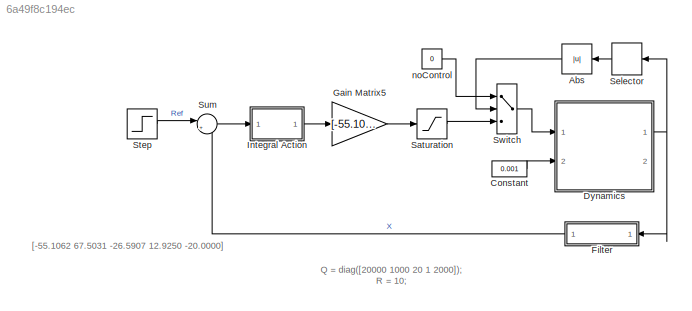
MODEL slx_6a49f8c194ec
KIND model
CONFIG AbsTol = auto
CONFIG FixedStep = 0.01
CONFIG MaxStep = auto
CONFIG MinStep = auto
CONFIG RelTol = 1e-3
CONFIG SampleTimeConstraint = Unconstrained
CONFIG Solver = ode5
CONFIG SolverMode = Auto
CONFIG SolverName = ode5
CONFIG StartTime = 0.0
CONFIG StopTime = 20
BLOCK [Abs] Abs
  SaturateOnIntegerOverflow = off
BLOCK [Constant] Constant
  Value = 0.001
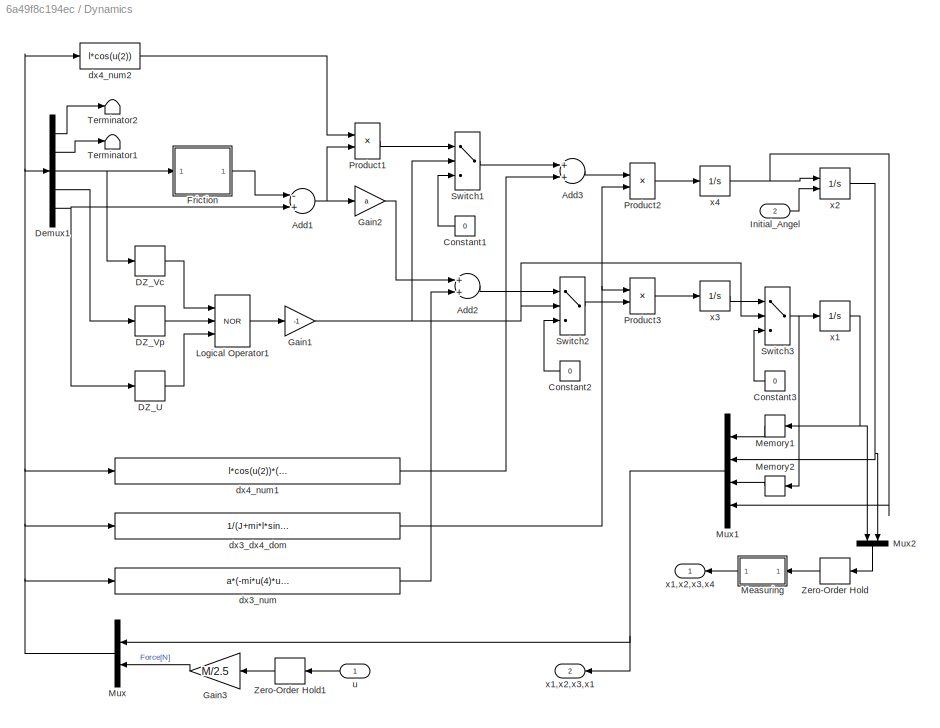
BLOCK [SubSystem] Dynamics
  Ports = [2, 2]
  RequestExecContextInheritance = off
BLOCK [DeadZone] Dynamics/ DZ_Vp
  LowerValue = -3.37476
  UpperValue = 3.37476
BLOCK [Sum] Dynamics/Add1
  InputSameDT = off
  Inputs = -+
  OutDataTypeStr = Inherit: Inherit via internal rule
  Ports = [2, 1]
  SaturateOnIntegerOverflow = off
BLOCK [Sum] Dynamics/Add2
  InputSameDT = off
  OutDataTypeStr = Inherit: Inherit via internal rule
  Ports = [2, 1]
  SaturateOnIntegerOverflow = off
BLOCK [Sum] Dynamics/Add3
  InputSameDT = off
  OutDataTypeStr = Inherit: Inherit via internal rule
  Ports = [2, 1]
  SaturateOnIntegerOverflow = off
BLOCK [Constant] Dynamics/Constant1
  Value = 0
BLOCK [Constant] Dynamics/Constant2
  Value = 0
BLOCK [Constant] Dynamics/Constant3
  Value = 0
BLOCK [DeadZone] Dynamics/DZ_U
  LowerValue = -1.37918
  UpperValue = 1.37918
BLOCK [DeadZone] Dynamics/DZ_Vc
  LowerValue = -0.00793711
  UpperValue = 0.00793711
BLOCK [Demux] Dynamics/Demux1
  DisplayOption = bar
  Outputs = 5
  Ports = [1, 5]
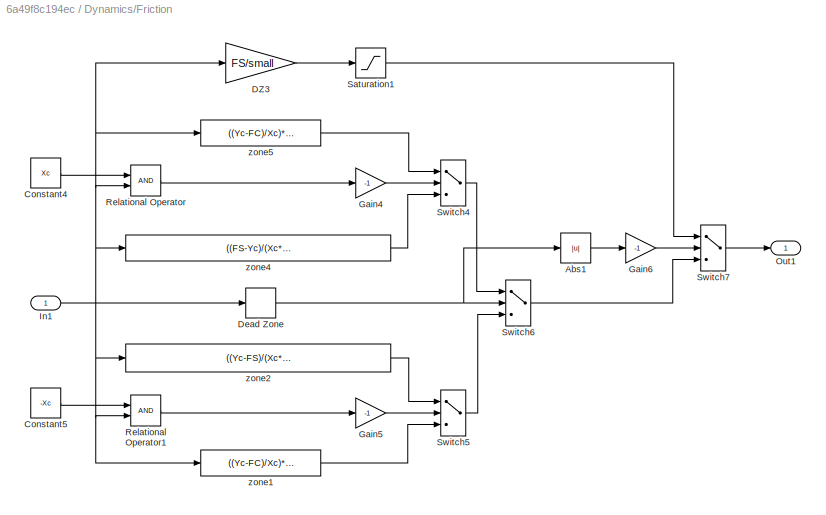
BLOCK [SubSystem] Dynamics/Friction
  Ports = [1, 1]
  RequestExecContextInheritance = off
BLOCK [Abs] Dynamics/Friction/Abs1
  SaturateOnIntegerOverflow = off
BLOCK [Constant] Dynamics/Friction/Constant4
  Value = Xc
BLOCK [Constant] Dynamics/Friction/Constant5
  Value = -Xc
BLOCK [Gain] Dynamics/Friction/DZ3
  Gain = FS/small
  OutDataTypeStr = Inherit: Inherit via internal rule
  ParamDataTypeStr = Inherit: Inherit via internal rule
  SaturateOnIntegerOverflow = off
BLOCK [DeadZone] Dynamics/Friction/Dead Zone
  LowerValue = -DZcv
  UpperValue = DZcv
BLOCK [Gain] Dynamics/Friction/Gain4
  Gain = -1
  OutDataTypeStr = Inherit: Inherit via internal rule
  ParamDataTypeStr = Inherit: Inherit via internal rule
  SaturateOnIntegerOverflow = off
BLOCK [Gain] Dynamics/Friction/Gain5
  Gain = -1
  OutDataTypeStr = Inherit: Inherit via internal rule
  ParamDataTypeStr = Inherit: Inherit via internal rule
  SaturateOnIntegerOverflow = off
BLOCK [Gain] Dynamics/Friction/Gain6
  Gain = -1
  OutDataTypeStr = Inherit: Inherit via internal rule
  ParamDataTypeStr = Inherit: Inherit via internal rule
  SaturateOnIntegerOverflow = off
BLOCK [Inport] Dynamics/Friction/In1
  IconDisplay = Port number
BLOCK [Outport] Dynamics/Friction/Out1
  IconDisplay = Port number
BLOCK [RelationalOperator] Dynamics/Friction/Relational Operator
  InputSameDT = off
  OutDataTypeStr = boolean
  Ports = [2, 1]
BLOCK [RelationalOperator] Dynamics/Friction/Relational Operator1
  InputSameDT = off
  OutDataTypeStr = boolean
  Ports = [2, 1]
BLOCK [Saturate] Dynamics/Friction/Saturation1
  InputPortMap = u0
  LowerLimit = -FS
  Ports = [1, 1]
  UpperLimit = FS
BLOCK [Switch] Dynamics/Friction/Switch4
  InputSameDT = off
  SaturateOnIntegerOverflow = off
BLOCK [Switch] Dynamics/Friction/Switch5
  InputSameDT = off
  SaturateOnIntegerOverflow = off
BLOCK [Switch] Dynamics/Friction/Switch6
  InputSameDT = off
  SaturateOnIntegerOverflow = off
BLOCK [Switch] Dynamics/Friction/Switch7
  InputSameDT = off
  SaturateOnIntegerOverflow = off
BLOCK [Fcn] Dynamics/Friction/zone1
  Expr = ((Yc-FC)/Xc)*u(1)-FC
BLOCK [Fcn] Dynamics/Friction/zone2
  Expr = ((Yc-FS)/(Xc*Xc))*(u(1)*u(1))+((2*(Yc-FS))/Xc)*u(1)-FS
BLOCK [Fcn] Dynamics/Friction/zone4
  Expr = ((FS-Yc)/(Xc*Xc))*(u(1)*u(1))-((2*(FS-Yc))/Xc)*u(1)+FS
BLOCK [Fcn] Dynamics/Friction/zone5
  Expr = ((Yc-FC)/Xc)*u(1)+FC
BLOCK [Gain] Dynamics/Gain1
  Gain = -1
  OutDataTypeStr = Inherit: Inherit via internal rule
  ParamDataTypeStr = Inherit: Inherit via internal rule
  SaturateOnIntegerOverflow = off
BLOCK [Gain] Dynamics/Gain2
  Gain = a
  OutDataTypeStr = Inherit: Inherit via internal rule
  ParamDataTypeStr = Inherit: Inherit via internal rule
  SaturateOnIntegerOverflow = off
BLOCK [Gain] Dynamics/Gain3
  Gain = M/2.5
  OutDataTypeStr = Inherit: Inherit via internal rule
  ParamDataTypeStr = Inherit: Inherit via internal rule
  SaturateOnIntegerOverflow = off
BLOCK [Inport] Dynamics/Initial_Angel
  IconDisplay = Port number
  Port = 2
BLOCK [Logic] Dynamics/Logical Operator1
  AllPortsSameDT = off
  Inputs = 3
  Operator = NOR
  OutDataTypeStr = boolean
  Ports = [3, 1]
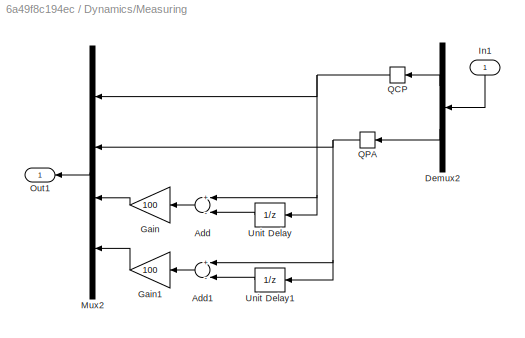
BLOCK [SubSystem] Dynamics/Measuring
  Ports = [1, 1]
  RequestExecContextInheritance = off
BLOCK [Sum] Dynamics/Measuring/Add
  InputSameDT = off
  Inputs = +-
  OutDataTypeStr = Inherit: Inherit via internal rule
  Ports = [2, 1]
  SaturateOnIntegerOverflow = off
BLOCK [Sum] Dynamics/Measuring/Add1
  InputSameDT = off
  Inputs = +-
  OutDataTypeStr = Inherit: Inherit via internal rule
  Ports = [2, 1]
  SaturateOnIntegerOverflow = off
BLOCK [Demux] Dynamics/Measuring/Demux2
  DisplayOption = bar
  Outputs = 2
  Ports = [1, 2]
BLOCK [Gain] Dynamics/Measuring/Gain
  Gain = 100
  OutDataTypeStr = Inherit: Inherit via internal rule
  ParamDataTypeStr = Inherit: Inherit via internal rule
  SaturateOnIntegerOverflow = off
BLOCK [Gain] Dynamics/Measuring/Gain1
  Gain = 100
  OutDataTypeStr = Inherit: Inherit via internal rule
  ParamDataTypeStr = Inherit: Inherit via internal rule
  SaturateOnIntegerOverflow = off
BLOCK [Inport] Dynamics/Measuring/In1
  IconDisplay = Port number
BLOCK [Mux] Dynamics/Measuring/Mux2
  DisplayOption = bar
  Ports = [4, 1]
BLOCK [Outport] Dynamics/Measuring/Out1
  IconDisplay = Port number
BLOCK [Quantizer] Dynamics/Measuring/QCP
  QuantizationInterval = 0.156/2048
BLOCK [Quantizer] Dynamics/Measuring/QPA
  QuantizationInterval = (2*pi)/2048
BLOCK [UnitDelay] Dynamics/Measuring/Unit Delay
  InputProcessing = Elements as channels (sample based)
  SampleTime = -1
BLOCK [UnitDelay] Dynamics/Measuring/Unit Delay1
  InputProcessing = Elements as channels (sample based)
  SampleTime = -1
BLOCK [Memory] Dynamics/Memory1
BLOCK [Memory] Dynamics/Memory2
BLOCK [Mux] Dynamics/Mux
  DisplayOption = bar
  Inputs = 2
  Ports = [2, 1]
BLOCK [Mux] Dynamics/Mux1
  DisplayOption = bar
  Ports = [4, 1]
BLOCK [Mux] Dynamics/Mux2
  DisplayOption = bar
  Inputs = 2
  Ports = [2, 1]
BLOCK [Product] Dynamics/Product1
  InputSameDT = off
  OutDataTypeStr = Inherit: Inherit via internal rule
  Ports = [2, 1]
  RndMeth = Floor
  SaturateOnIntegerOverflow = off
BLOCK [Product] Dynamics/Product2
  InputSameDT = off
  OutDataTypeStr = Inherit: Inherit via internal rule
  Ports = [2, 1]
  RndMeth = Floor
  SaturateOnIntegerOverflow = off
BLOCK [Product] Dynamics/Product3
  InputSameDT = off
  OutDataTypeStr = Inherit: Inherit via internal rule
  Ports = [2, 1]
  RndMeth = Floor
  SaturateOnIntegerOverflow = off
BLOCK [Switch] Dynamics/Switch1
  InputSameDT = off
  SaturateOnIntegerOverflow = off
BLOCK [Switch] Dynamics/Switch2
  InputSameDT = off
  SaturateOnIntegerOverflow = off
BLOCK [Switch] Dynamics/Switch3
  InputSameDT = off
  SaturateOnIntegerOverflow = off
BLOCK [Terminator] Dynamics/Terminator1
BLOCK [Terminator] Dynamics/Terminator2
BLOCK [ZeroOrderHold] Dynamics/Zero-Order Hold
  SampleTime = 0.01
BLOCK [ZeroOrderHold] Dynamics/Zero-Order Hold1
  SampleTime = 0.01
BLOCK [Fcn] Dynamics/dx3_dx4_dom
  Expr = 1/(J+mi*l*sin(u(2))*sin(u(2)))
BLOCK [Fcn] Dynamics/dx3_num
  Expr = a*(-mi*u(4)*u(4)*sin(u(2)))+l*cos(u(2))*(mi*g*sin(u(2))-fp*u(4))
BLOCK [Fcn] Dynamics/dx4_num1
  Expr = l*cos(u(2))*(-mi*u(4)*u(4)*sin(u(2)))+mi*g*sin(u(2))-fp*u(4)
BLOCK [Fcn] Dynamics/dx4_num2
  Expr = l*cos(u(2))
BLOCK [Inport] Dynamics/u
  IconDisplay = Port number
BLOCK [Integrator] Dynamics/x1
  Ports = [1, 1]
BLOCK [Outport] Dynamics/x1,x2,x3,x1
  IconDisplay = Port number
  Port = 2
BLOCK [Outport] Dynamics/x1,x2,x3,x4
  IconDisplay = Port number
BLOCK [Integrator] Dynamics/x2
  InitialCondition = pi/2
  InitialConditionSource = external
  Ports = [2, 1]
BLOCK [Integrator] Dynamics/x3
  Ports = [1, 1]
BLOCK [Integrator] Dynamics/x4
  Ports = [1, 1]
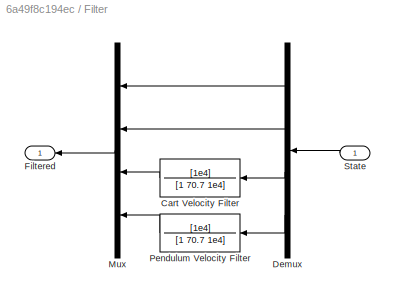
BLOCK [SubSystem] Filter
  Ports = [1, 1]
  RequestExecContextInheritance = off
BLOCK [TransferFcn] Filter/Cart Velocity Filter
  Denominator = [1 70.7 1e4]
  Numerator = [1e4]
BLOCK [Demux] Filter/Demux
  DisplayOption = bar
  Ports = [1, 4]
BLOCK [Outport] Filter/Filtered
  IconDisplay = Port number
BLOCK [Mux] Filter/Mux
  DisplayOption = bar
  Ports = [4, 1]
BLOCK [TransferFcn] Filter/Pendulum Velocity  Filter
  Denominator = [1 70.7 1e4]
  Numerator = [1e4]
BLOCK [Inport] Filter/State
  IconDisplay = Port number
BLOCK [Gain] Gain Matrix5
  Gain = [-55.1062   67.5031  -26.5907   12.9250   -20.0000]
  Multiplication = Matrix(K*u) (u vector)
  OutDataTypeStr = Inherit: Inherit via internal rule
  ParamDataTypeStr = Inherit: Inherit via internal rule
  SaturateOnIntegerOverflow = off
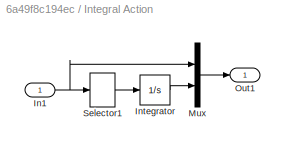
BLOCK [SubSystem] Integral Action
  Ports = [1, 1]
  RequestExecContextInheritance = off
BLOCK [Inport] Integral Action/In1
  IconDisplay = Port number
BLOCK [Integrator] Integral Action/Integrator
  Ports = [1, 1]
BLOCK [Mux] Integral Action/Mux
  DisplayOption = bar
  Inputs = 2
  Ports = [2, 1]
BLOCK [Outport] Integral Action/Out1
  IconDisplay = Port number
BLOCK [Selector] Integral Action/Selector1
  Indices = [1]
  InputPortWidth = 4
  Ports = [1, 1]
BLOCK [Saturate] Saturation
  InputPortMap = u0
  LowerLimit = -2.5
  Ports = [1, 1]
  UpperLimit = 2.5
BLOCK [Selector] Selector
  Indices = [2]
  InputPortWidth = 4
  Ports = [1, 1]
BLOCK [Step] Step
  After = 0.2
  SampleTime = 0
  Time = 10
BLOCK [Sum] Sum
  IconShape = round
  InputSameDT = off
  Inputs = |+-
  OutDataTypeStr = Inherit: Inherit via internal rule
  Ports = [2, 1]
  SaturateOnIntegerOverflow = off
BLOCK [Switch] Switch
  Criteria = u2 > Threshold
  InputSameDT = off
  SaturateOnIntegerOverflow = off
  Threshold = pi/4
BLOCK [Constant] noControl
  Value = 0
ANNOTATION (root): Q = diag([20000 1000 20 1 2000]); R = 10;
ANNOTATION (root): [-55.1062 67.5031 -26.5907 12.9250 -20.0000]
LINE Abs:1 -> Switch:2
LINE Constant:1 -> Dynamics:2
LINE Dynamics/ DZ_Vp:1 -> Dynamics/Logical Operator1:2
NET Dynamics/Add1:1 -> Dynamics/Gain2:1, Dynamics/Product1:2
LINE Dynamics/Add2:1 -> Dynamics/Switch2:1
LINE Dynamics/Add3:1 -> Dynamics/Product2:1
LINE Dynamics/Constant1:1 -> Dynamics/Switch1:3
LINE Dynamics/Constant2:1 -> Dynamics/Switch2:3
LINE Dynamics/Constant3:1 -> Dynamics/Switch3:3
LINE Dynamics/DZ_U:1 -> Dynamics/Logical Operator1:3
LINE Dynamics/DZ_Vc:1 -> Dynamics/Logical Operator1:1
LINE Dynamics/Demux1:1 -> Dynamics/Terminator2:1
LINE Dynamics/Demux1:2 -> Dynamics/Terminator1:1
NET Dynamics/Demux1:3 -> Dynamics/DZ_Vc:1, Dynamics/Friction:1
LINE Dynamics/Demux1:4 -> Dynamics/ DZ_Vp:1
NET Dynamics/Demux1:5 -> Dynamics/Add1:2, Dynamics/DZ_U:1
LINE Dynamics/Friction/Abs1:1 -> Dynamics/Friction/Gain6:1
LINE Dynamics/Friction/Constant4:1 -> Dynamics/Friction/Relational Operator:1
LINE Dynamics/Friction/Constant5:1 -> Dynamics/Friction/Relational Operator1:1
LINE Dynamics/Friction/DZ3:1 -> Dynamics/Friction/Saturation1:1
NET Dynamics/Friction/Dead Zone:1 -> Dynamics/Friction/Abs1:1, Dynamics/Friction/Switch6:2
LINE Dynamics/Friction/Gain4:1 -> Dynamics/Friction/Switch4:2
LINE Dynamics/Friction/Gain5:1 -> Dynamics/Friction/Switch5:2
LINE Dynamics/Friction/Gain6:1 -> Dynamics/Friction/Switch7:2
NET Dynamics/Friction/In1:1 -> Dynamics/Friction/DZ3:1, Dynamics/Friction/Dead Zone:1, Dynamics/Friction/Relational Operator1:2, Dynamics/Friction/Relational Operator:2, Dynamics/Friction/zone1:1, Dynamics/Friction/zone2:1, Dynamics/Friction/zone4:1, Dynamics/Friction/zone5:1
LINE Dynamics/Friction/Relational Operator1:1 -> Dynamics/Friction/Gain5:1
LINE Dynamics/Friction/Relational Operator:1 -> Dynamics/Friction/Gain4:1
LINE Dynamics/Friction/Saturation1:1 -> Dynamics/Friction/Switch7:1
LINE Dynamics/Friction/Switch4:1 -> Dynamics/Friction/Switch6:1
LINE Dynamics/Friction/Switch5:1 -> Dynamics/Friction/Switch6:3
LINE Dynamics/Friction/Switch6:1 -> Dynamics/Friction/Switch7:3
LINE Dynamics/Friction/Switch7:1 -> Dynamics/Friction/Out1:1
LINE Dynamics/Friction/zone1:1 -> Dynamics/Friction/Switch5:3
LINE Dynamics/Friction/zone2:1 -> Dynamics/Friction/Switch5:1
LINE Dynamics/Friction/zone4:1 -> Dynamics/Friction/Switch4:3
LINE Dynamics/Friction/zone5:1 -> Dynamics/Friction/Switch4:1
LINE Dynamics/Friction:1 -> Dynamics/Add1:1
NET Dynamics/Gain1:1 -> Dynamics/Switch1:2, Dynamics/Switch2:2, Dynamics/Switch3:2
LINE Dynamics/Gain2:1 -> Dynamics/Add2:1
LINE Dynamics/Gain3:1 -> Dynamics/Mux:2
LINE Dynamics/Initial_Angel:1 -> Dynamics/x2:2
LINE Dynamics/Logical Operator1:1 -> Dynamics/Gain1:1
LINE Dynamics/Measuring/Add1:1 -> Dynamics/Measuring/Gain1:1
LINE Dynamics/Measuring/Add:1 -> Dynamics/Measuring/Gain:1
LINE Dynamics/Measuring/Demux2:1 -> Dynamics/Measuring/QCP:1
LINE Dynamics/Measuring/Demux2:2 -> Dynamics/Measuring/QPA:1
LINE Dynamics/Measuring/Gain1:1 -> Dynamics/Measuring/Mux2:4
LINE Dynamics/Measuring/Gain:1 -> Dynamics/Measuring/Mux2:3
LINE Dynamics/Measuring/In1:1 -> Dynamics/Measuring/Demux2:1
LINE Dynamics/Measuring/Mux2:1 -> Dynamics/Measuring/Out1:1
NET Dynamics/Measuring/QCP:1 -> Dynamics/Measuring/Add:1, Dynamics/Measuring/Mux2:1, Dynamics/Measuring/Unit Delay:1
NET Dynamics/Measuring/QPA:1 -> Dynamics/Measuring/Add1:1, Dynamics/Measuring/Mux2:2, Dynamics/Measuring/Unit Delay1:1
LINE Dynamics/Measuring/Unit Delay1:1 -> Dynamics/Measuring/Add1:2
LINE Dynamics/Measuring/Unit Delay:1 -> Dynamics/Measuring/Add:2
LINE Dynamics/Measuring:1 -> Dynamics/x1,x2,x3,x4:1
LINE Dynamics/Memory1:1 -> Dynamics/Mux1:1
LINE Dynamics/Memory2:1 -> Dynamics/Mux1:3
NET Dynamics/Mux1:1 -> Dynamics/Mux:1, Dynamics/x1,x2,x3,x1:1
LINE Dynamics/Mux2:1 -> Dynamics/Zero-Order Hold:1
NET Dynamics/Mux:1 -> Dynamics/Demux1:1, Dynamics/dx3_dx4_dom:1, Dynamics/dx3_num:1, Dynamics/dx4_num1:1, Dynamics/dx4_num2:1
LINE Dynamics/Product1:1 -> Dynamics/Switch1:1
LINE Dynamics/Product2:1 -> Dynamics/x4:1
LINE Dynamics/Product3:1 -> Dynamics/x3:1
LINE Dynamics/Switch1:1 -> Dynamics/Add3:1
LINE Dynamics/Switch2:1 -> Dynamics/Product3:2
NET Dynamics/Switch3:1 -> Dynamics/Memory2:1, Dynamics/x1:1
LINE Dynamics/Zero-Order Hold1:1 -> Dynamics/Gain3:1
LINE Dynamics/Zero-Order Hold:1 -> Dynamics/Measuring:1
NET Dynamics/dx3_dx4_dom:1 -> Dynamics/Product2:2, Dynamics/Product3:1
LINE Dynamics/dx3_num:1 -> Dynamics/Add2:2
LINE Dynamics/dx4_num1:1 -> Dynamics/Add3:2
LINE Dynamics/dx4_num2:1 -> Dynamics/Product1:1
LINE Dynamics/u:1 -> Dynamics/Zero-Order Hold1:1
NET Dynamics/x1:1 -> Dynamics/Memory1:1, Dynamics/Mux2:1
NET Dynamics/x2:1 -> Dynamics/Mux1:2, Dynamics/Mux2:2
LINE Dynamics/x3:1 -> Dynamics/Switch3:1
NET Dynamics/x4:1 -> Dynamics/Mux1:4, Dynamics/x2:1
NET Dynamics:1 -> Filter:1, Selector:1
LINE Filter/Cart Velocity Filter:1 -> Filter/Mux:3
LINE Filter/Demux:1 -> Filter/Mux:1
LINE Filter/Demux:2 -> Filter/Mux:2
LINE Filter/Demux:3 -> Filter/Cart Velocity Filter:1
LINE Filter/Demux:4 -> Filter/Pendulum Velocity  Filter:1
LINE Filter/Mux:1 -> Filter/Filtered:1
LINE Filter/Pendulum Velocity  Filter:1 -> Filter/Mux:4
LINE Filter/State:1 -> Filter/Demux:1
LINE Filter:1 -> Sum:2
LINE Gain Matrix5:1 -> Saturation:1
NET Integral Action/In1:1 -> Integral Action/Mux:1, Integral Action/Selector1:1
LINE Integral Action/Integrator:1 -> Integral Action/Mux:2
LINE Integral Action/Mux:1 -> Integral Action/Out1:1
LINE Integral Action/Selector1:1 -> Integral Action/Integrator:1
LINE Integral Action:1 -> Gain Matrix5:1
LINE Saturation:1 -> Switch:3
LINE Selector:1 -> Abs:1
LINE Step:1 -> Sum:1
LINE Sum:1 -> Integral Action:1
LINE Switch:1 -> Dynamics:1
LINE noControl:1 -> Switch:1
note: NET lines group one-source signal fan-out (src -> all destinations, sorted); 1:1 wires keep LINE
